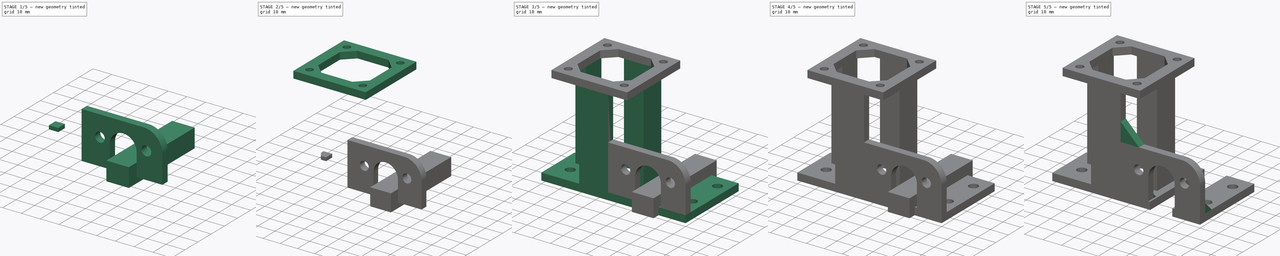
[diagram: build sequence overview — one tinted view per stage of 5, left to right]
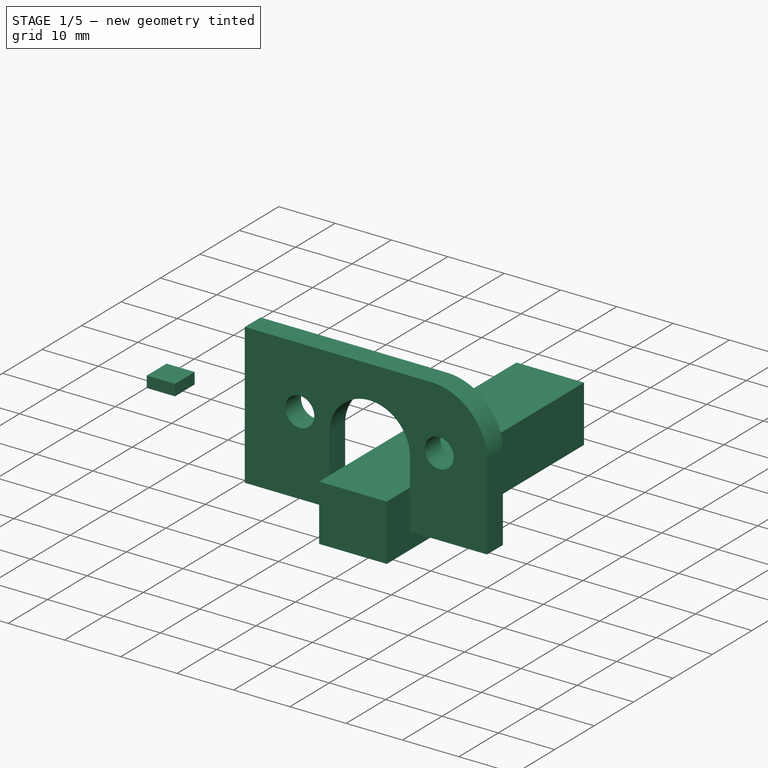
[diagram: stage 1 of 5 — iso view after this stage's code; geometry added in this stage tinted green]
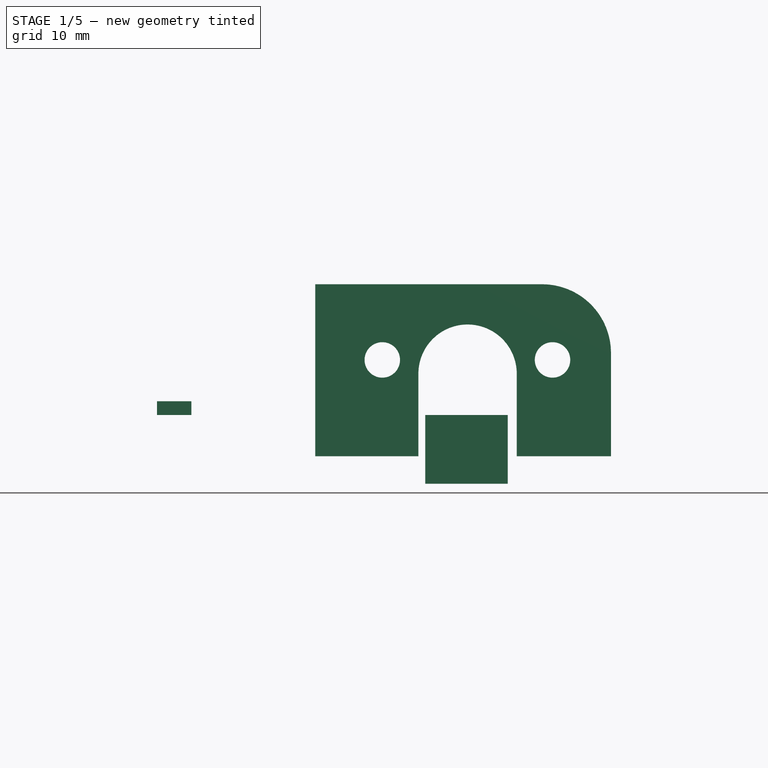
[diagram: stage 1 of 5 — front view after this stage's code; geometry added in this stage tinted green]
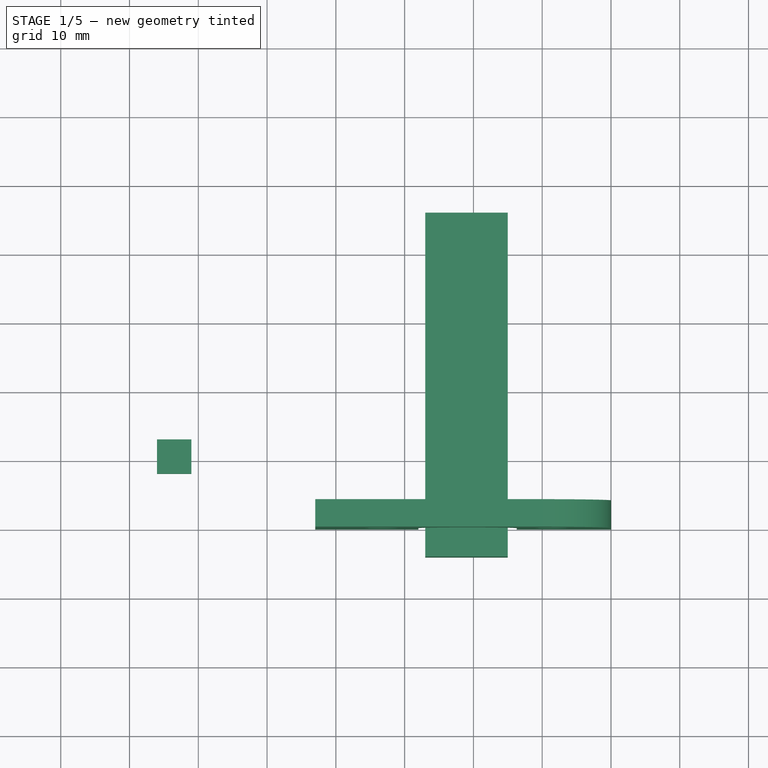
[diagram: stage 1 of 5 — top view after this stage's code; geometry added in this stage tinted green]
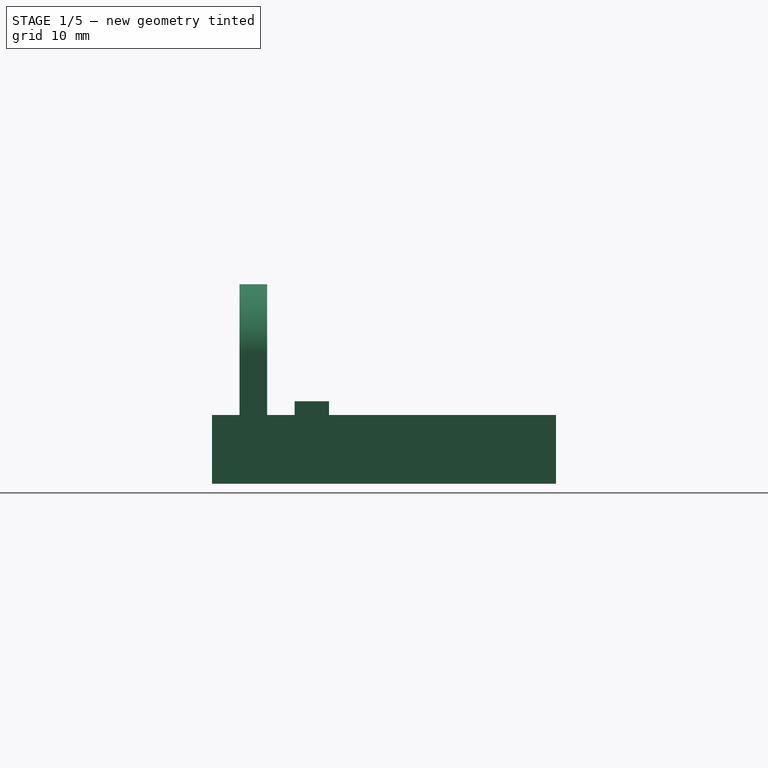
[diagram: stage 1 of 5 — right view after this stage's code; geometry added in this stage tinted green]
FCSTD DOCUMENT  (FreeCAD 0.14R3702 (Git))
Label: left_slide_rail_flange_mount
License: CC-BY 3.0
LicenseURL: http://creativecommons.org/licenses/by/3.0/
objects: Part::Box×10, Sketcher::SketchObject×7, PartDesign::Pocket×6, Part::MultiFuse×4, PartDesign::Chamfer×3, PartDesign::Pad×1, PartDesign::Fillet×1, Part::Cut×1
note: 40 computed .brp shape members not serialized (recipe doc carries the construction recipe); baked Part::Feature solids carry a one-line shape summary decoded from their .brp

FEATURE [Part::Box] Box006  label="Cube005"
  Height = 2
  Length = 5
  Placement = pos=(14,8,10) rot=(0,0,1;0rad)
  Width = 5
FEATURE [Part::Box] Box008  label="Cube007"
  Height = 25
  Length = 43
  Placement = pos=(37,0,4) rot=(0,0,1;0rad)
  Width = 4
FEATURE [Sketcher::SketchObject] Sketch006
  Placement = pos=(37,0,4) rot=(1,0,0;1.5708rad)
  Support = -> Box008 [Face3]
  sketch-geometry (6):
    g0: Circle CenterX=34.5 CenterY=14 CenterZ=0 NormalX=0 NormalY=0 NormalZ=1 Radius=2.5781
    g1: Circle CenterX=9.753 CenterY=14 CenterZ=0 NormalX=0 NormalY=0 NormalZ=1 Radius=2.5781
    g2: ArcOfCircle CenterX=22.15 CenterY=12 CenterZ=0 NormalX=0 NormalY=0 NormalZ=1 Radius=7.15 StartAngle=3.69758e-06 EndAngle=3.14159
    g3: LineSegment StartX=15 StartY=12 StartZ=0 EndX=15 EndY=0 EndZ=0
    g4: LineSegment StartX=29.3 StartY=12 StartZ=0 EndX=29.3 EndY=0 EndZ=0
    g5: LineSegment StartX=15 StartY=0 StartZ=0 EndX=29.3 EndY=0 EndZ=0
  constraints (19):
    c: Radius(g0) = 2.5781
    c: Equal(g0,g1)
    c: DistanceX(g1,g0) = 24.747
    c: DistanceY(g-1,g1) = 14
    c: DistanceY(g-1,g0) = 14
    c: DistanceX(g-1,g0) = 34.5
    c: Coincident(g3,g2)
    c: PointOnObject(g3,g-1)
    c: Vertical(g3)
    c: Coincident(g4,g2)
    c: PointOnObject(g4,g-1)
    c: Vertical(g4)
    c: Tangent(g4,g2)
    c: DistanceX(g-1,g2) = 22.15
    c: DistanceX(g-1,g2) = 15
    c: DistanceY(g-1,g2) = 12
    c: DistanceY(g-1,g2) = 12
    c: Coincident(g5,g3)
    c: Coincident(g5,g4)
FEATURE [PartDesign::Pocket] Pocket005
  Length = 5
  Placement = pos=(37,0,4) rot=(0,0,1;0rad)
  Sketch = -> Sketch006
  Type = 1
FEATURE [PartDesign::Fillet] Fillet
  Base = -> Pocket005 [Edge15]
  Placement = pos=(37,0,4) rot=(0,0,1;0rad)
  Radius = 10
FEATURE [Part::Box] Box009  label="Cube008"
  Height = 10
  Length = 12
  Placement = pos=(53,-4,0) rot=(0,0,1;0rad)
  Width = 50
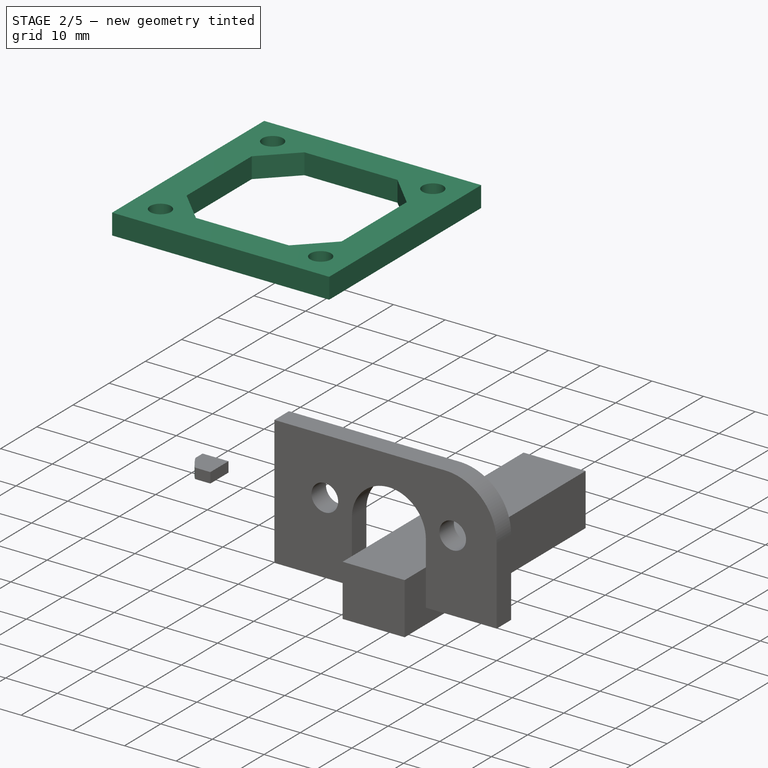
[diagram: stage 2 of 5 — iso view after this stage's code; geometry added in this stage tinted green]
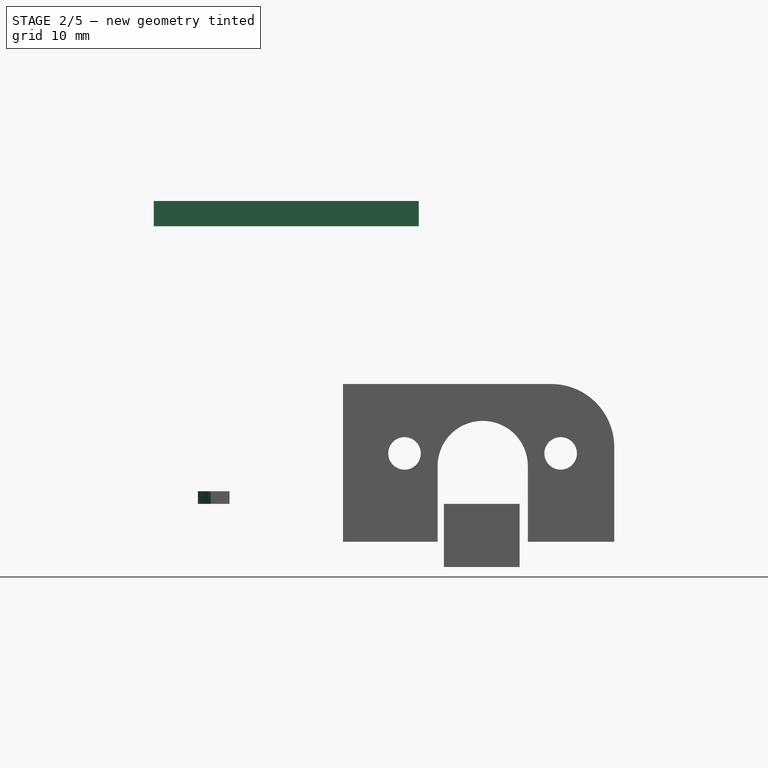
[diagram: stage 2 of 5 — front view after this stage's code; geometry added in this stage tinted green]
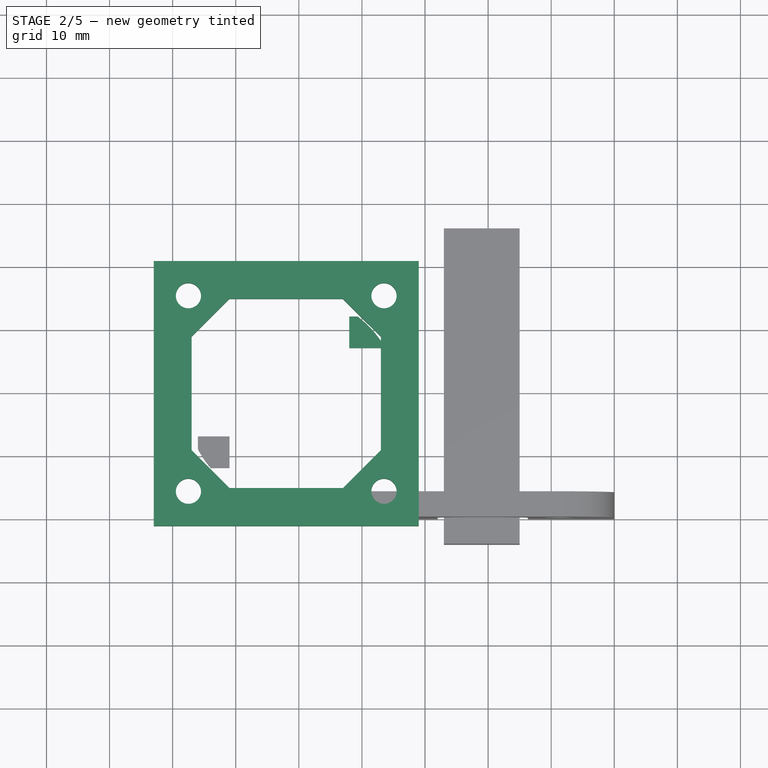
[diagram: stage 2 of 5 — top view after this stage's code; geometry added in this stage tinted green]
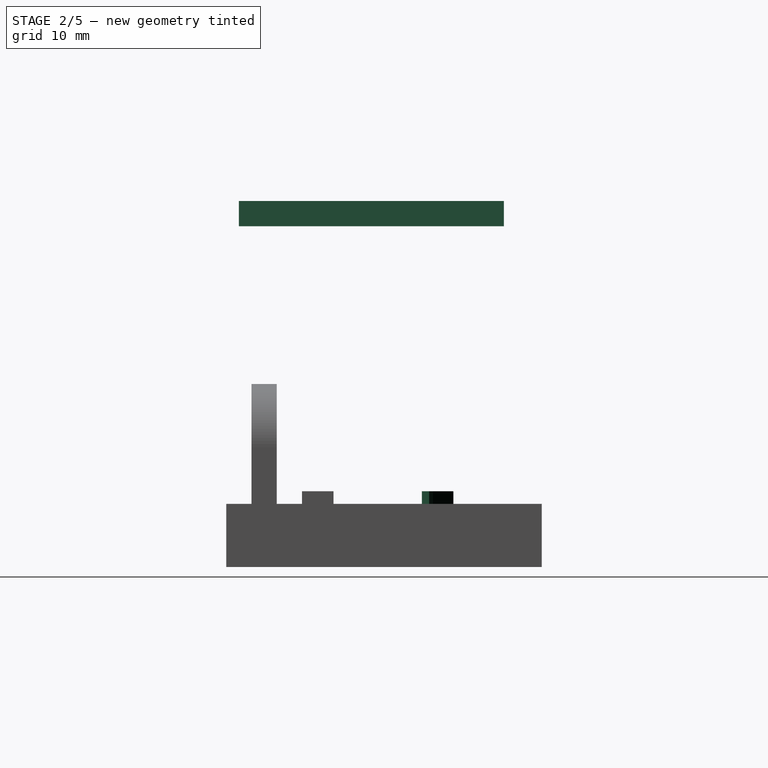
[diagram: stage 2 of 5 — right view after this stage's code; geometry added in this stage tinted green]
FEATURE [Part::Box] Box005  label="Cube004"
  Height = 4
  Length = 42
  Placement = pos=(7,-2,54) rot=(0,0,1;0rad)
  Width = 42
FEATURE [Sketcher::SketchObject] Sketch003
  Placement = pos=(7,-2,58) rot=(0,0,1;0rad)
  Support = -> Box005 [Face6]
  sketch-geometry (12):
    g0: LineSegment StartX=6 StartY=30 StartZ=0 EndX=6 EndY=12 EndZ=0
    g1: LineSegment StartX=6 StartY=12 StartZ=0 EndX=12 EndY=6 EndZ=0
    g2: LineSegment StartX=12 StartY=6 StartZ=0 EndX=30 EndY=6 EndZ=0
    g3: LineSegment StartX=30 StartY=6 StartZ=0 EndX=36 EndY=12 EndZ=0
    g4: LineSegment StartX=36 StartY=12 StartZ=0 EndX=36 EndY=30 EndZ=0
    g5: LineSegment StartX=36 StartY=30 StartZ=0 EndX=30 EndY=36 EndZ=0
    g6: LineSegment StartX=30 StartY=36 StartZ=0 EndX=12 EndY=36 EndZ=0
    g7: LineSegment StartX=12 StartY=36 StartZ=0 EndX=6 EndY=30 EndZ=0
    g8: Circle CenterX=5.5 CenterY=36.5 CenterZ=0 NormalX=0 NormalY=0 NormalZ=1 Radius=2
    g9: Circle CenterX=36.5 CenterY=36.5 CenterZ=0 NormalX=0 NormalY=0 NormalZ=1 Radius=2
    g10: Circle CenterX=5.5 CenterY=5.5 CenterZ=0 NormalX=0 NormalY=0 NormalZ=1 Radius=2
    g11: Circle CenterX=36.5 CenterY=5.5 CenterZ=0 NormalX=0 NormalY=0 NormalZ=1 Radius=2
  constraints (36):
    c: Vertical(g0)
    c: Coincident(g0,g1)
    c: Coincident(g1,g2)
    c: Horizontal(g2)
    c: Coincident(g2,g3)
    c: Coincident(g3,g4)
    c: Vertical(g4)
    c: Coincident(g4,g5)
    c: Coincident(g5,g6)
    c: Horizontal(g6)
    c: Coincident(g6,g7)
    c: Coincident(g7,g0)
    c: DistanceX(g-1,g0) = 6
    c: DistanceY(g-1,g1) = 6
    c: DistanceY(g-1,g6) = 36
    c: DistanceX(g-1,g3) = 36
    c: DistanceY(g-1,g4) = 30
    c: DistanceX(g-1,g5) = 30
    c: DistanceX(g-1,g6) = 12
    c: DistanceY(g-1,g0) = 12
    c: DistanceY(g-1,g0) = 30
    c: DistanceX(g-1,g1) = 12
    c: DistanceX(g-1,g2) = 30
    c: DistanceY(g-1,g3) = 12
    c: Radius(g8) = 2
    c: Equal(g8,g9)
    c: Equal(g9,g11)
    c: Equal(g11,g10)
    c: DistanceX(g8,g9) = 31
    c: DistanceY(g9,g11) = -31
    c: DistanceX(g10,g11) = 31
    c: DistanceY(g10,g8) = 31
    c: DistanceY(g8,g11) = -31
    c: DistanceX(g11,g8) = -31
    c: DistanceY(g-1,g10) = 5.5
    c: DistanceX(g-1,g10) = 5.5
FEATURE [PartDesign::Pocket] Pocket002
  Length = 5
  Placement = pos=(7,-2,54) rot=(0,0,1;0rad)
  Sketch = -> Sketch003
  Type = 1
FEATURE [Part::Box] Box007  label="Cube006"
  Height = 2
  Length = 5
  Placement = pos=(38,27,10) rot=(0,0,1;0rad)
  Width = 5
FEATURE [Sketcher::SketchObject] Sketch004
  Placement = pos=(38,27,12) rot=(0,0,1;0rad)
  Support = -> Box007 [Face6]
  sketch-geometry (2):
    g0: Circle CenterX=-9 CenterY=-8.5 CenterZ=0 NormalX=0 NormalY=0 NormalZ=1 Radius=17
    g1: Circle CenterX=-9 CenterY=-8.5 CenterZ=0 NormalX=0 NormalY=0 NormalZ=1 Radius=22
  constraints (5):
    c: Radius(g0) = 17
    c: DistanceY(g-1,g0) = -8.5
    c: DistanceX(g-1,g0) = -9
    c: Coincident(g1,g0)
    c: Radius(g1) = 22
FEATURE [PartDesign::Pocket] Pocket003
  Length = 4
  Placement = pos=(38,27,10) rot=(0,0,1;0rad)
  Sketch = -> Sketch004
  Type = 0
FEATURE [Sketcher::SketchObject] Sketch005
  Placement = pos=(14,8,12) rot=(0,0,1;0rad)
  Support = -> Box006 [Face6]
  sketch-geometry (2):
    g0: Circle CenterX=15 CenterY=11 CenterZ=0 NormalX=0 NormalY=0 NormalZ=1 Radius=17
    g1: Circle CenterX=15 CenterY=11 CenterZ=0 NormalX=0 NormalY=0 NormalZ=1 Radius=22
  constraints (5):
    c: Radius(g0) = 17
    c: DistanceX(g-1,g0) = 15
    c: DistanceY(g-1,g0) = 11
    c: Coincident(g1,g0)
    c: Radius(g1) = 22
FEATURE [PartDesign::Pocket] Pocket004
  Length = 4
  Placement = pos=(14,8,10) rot=(0,0,1;0rad)
  Sketch = -> Sketch005
  Type = 0
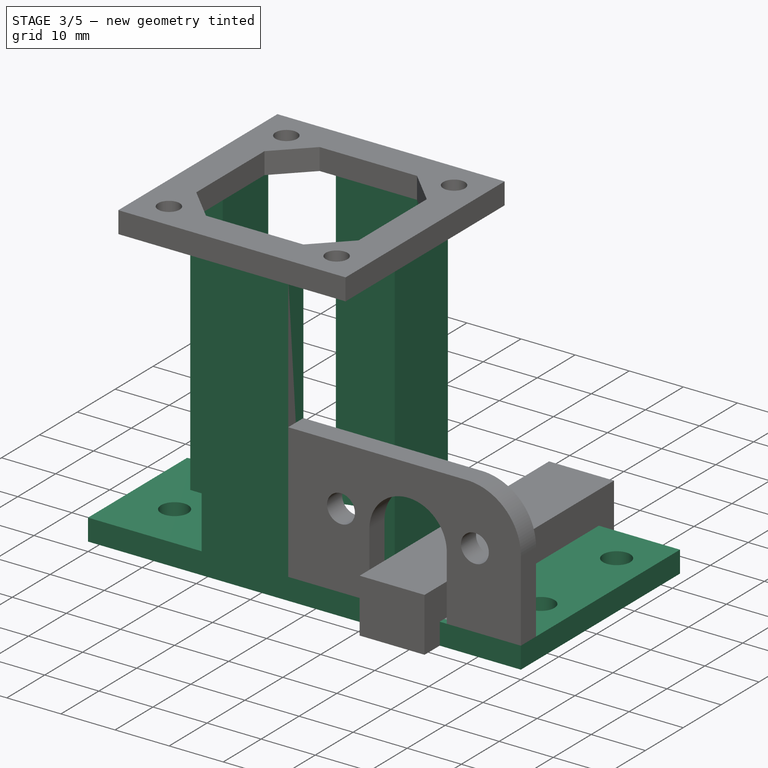
[diagram: stage 3 of 5 — iso view after this stage's code; geometry added in this stage tinted green]
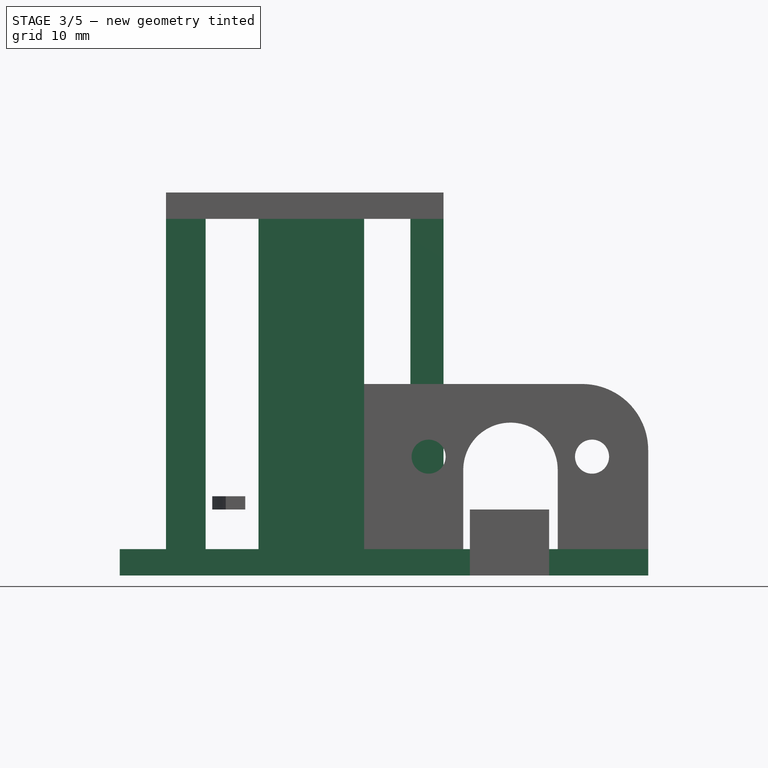
[diagram: stage 3 of 5 — front view after this stage's code; geometry added in this stage tinted green]
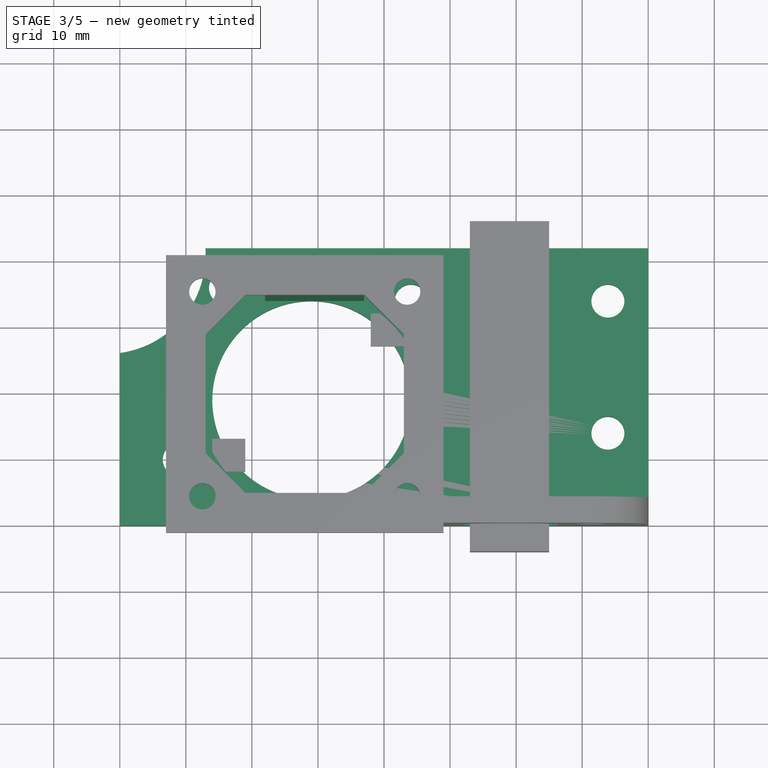
[diagram: stage 3 of 5 — top view after this stage's code; geometry added in this stage tinted green]
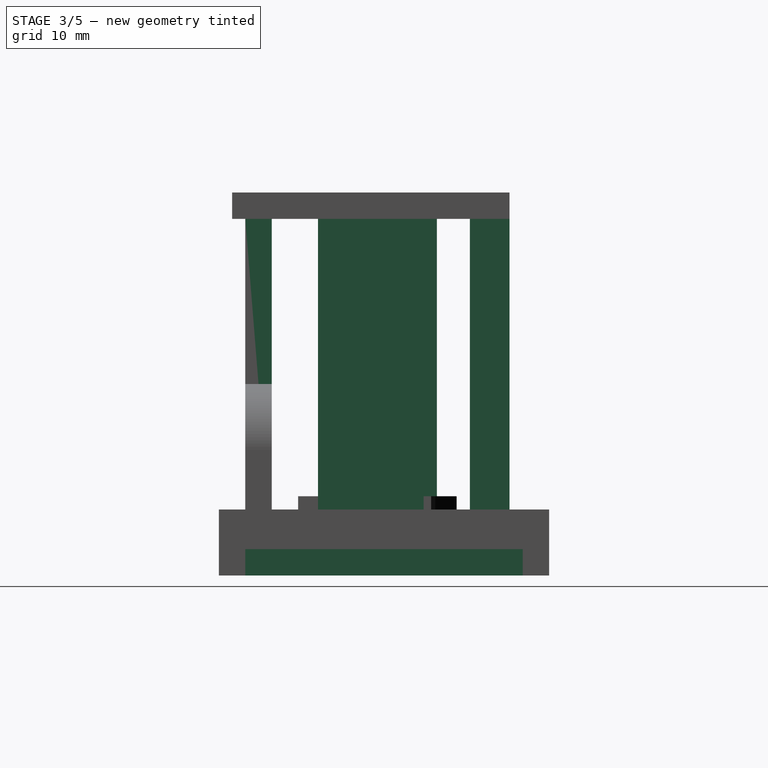
[diagram: stage 3 of 5 — right view after this stage's code; geometry added in this stage tinted green]
FEATURE [Part::Box] Box  label="base_plate"
  Height = 4
  Length = 80
  Width = 42
FEATURE [Sketcher::SketchObject] Sketch
  Placement = pos=(0,0,4) rot=(0,0,1;0rad)
  Support = -> Box [Face6]
  sketch-geometry (7):
    g0: Circle CenterX=-2 CenterY=41 CenterZ=0 NormalX=0 NormalY=0 NormalZ=1 Radius=15
    g1: Circle CenterX=29 CenterY=19 CenterZ=0 NormalX=0 NormalY=0 NormalZ=1 Radius=15
    g2: Circle CenterX=9 CenterY=10 CenterZ=0 NormalX=0 NormalY=0 NormalZ=1 Radius=2.5
    g3: Circle CenterX=16 CenterY=36 CenterZ=0 NormalX=0 NormalY=0 NormalZ=1 Radius=2.5
    g4: Circle CenterX=44.1 CenterY=34 CenterZ=0 NormalX=0 NormalY=0 NormalZ=1 Radius=2.5
    g5: Circle CenterX=73.9 CenterY=34 CenterZ=0 NormalX=0 NormalY=0 NormalZ=1 Radius=2.5
    g6: Circle CenterX=73.9 CenterY=14 CenterZ=0 NormalX=0 NormalY=0 NormalZ=1 Radius=2.5
  constraints (21):
    c: DistanceY(g-1,g0) = 41
    c: DistanceX(g-1,g0) = -2
    c: Radius(g0) = 15
    c: Radius(g1) = 15
    c: DistanceY(g-1,g1) = 19
    c: DistanceX(g-1,g1) = 29
    c: Radius(g2) = 2.5
    c: Equal(g2,g3)
    c: Equal(g3,g4)
    c: Equal(g4,g5)
    c: Equal(g5,g6)
    c: DistanceX(g-1,g2) = 9
    c: DistanceY(g-1,g2) = 10
    c: DistanceY(g-1,g6) = 14
    c: DistanceY(g5,g6) = -20
    c: DistanceX(g-1,g5) = 73.9
    c: DistanceX(g-1,g6) = 73.9
    c: DistanceX(g-1,g3) = 16
    c: DistanceY(g3,g2) = -26
    c: DistanceY(g-1,g4) = 34
    c: DistanceX(g-1,g4) = 44.1
FEATURE [PartDesign::Pocket] Pocket
  Length = 5
  Sketch = -> Sketch
  Type = 1
FEATURE [Part::Box] Box001  label="Cube"
  Height = 50
  Length = 15
  Placement = pos=(22,34,4) rot=(0,0,1;0rad)
  Width = 6
FEATURE [Part::Box] Box002  label="Cube001"
  Height = 50
  Length = 16
  Placement = pos=(21,0,4) rot=(0,0,1;0rad)
  Width = 4
FEATURE [Part::Box] Box003  label="Cube002"
  Height = 50
  Length = 5
  Placement = pos=(44,11,4) rot=(0,0,1;0rad)
  Width = 14
FEATURE [Part::Box] Box004  label="Cube003"
  Height = 50
  Length = 6
  Placement = pos=(7,17,4) rot=(0,0,1;0rad)
  Width = 12
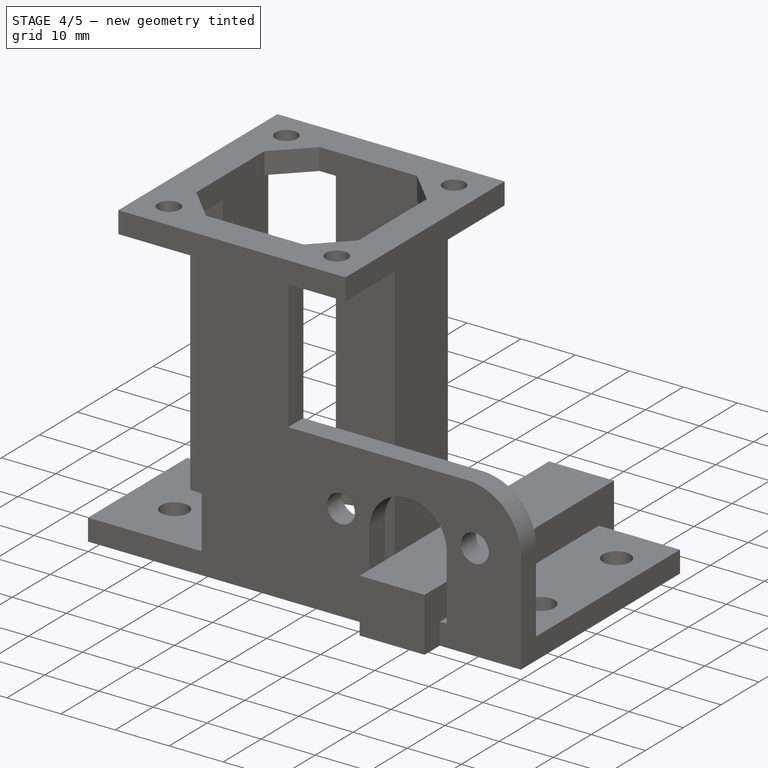
[diagram: stage 4 of 5 — iso view after this stage's code; geometry added in this stage tinted green]
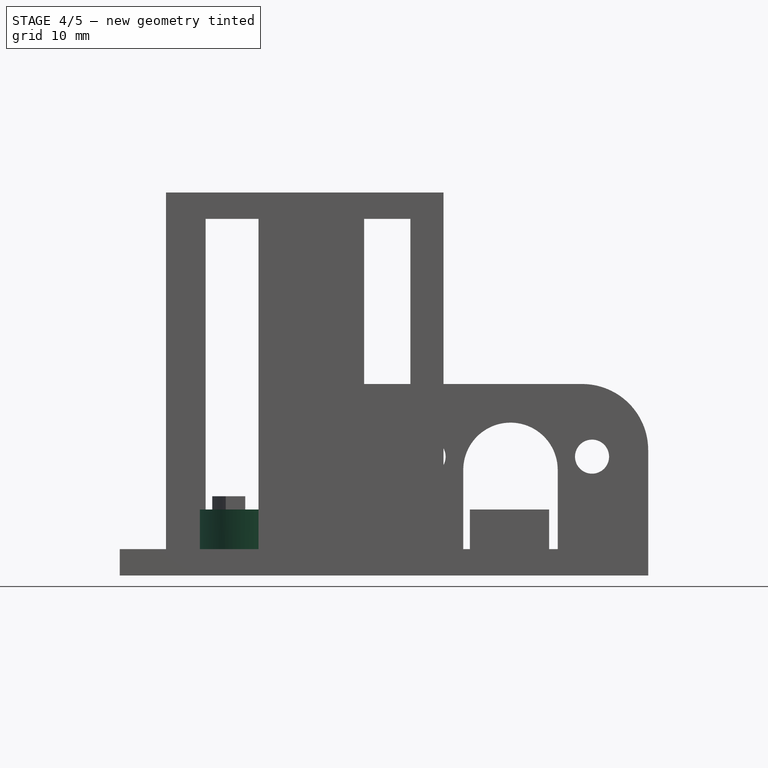
[diagram: stage 4 of 5 — front view after this stage's code; geometry added in this stage tinted green]
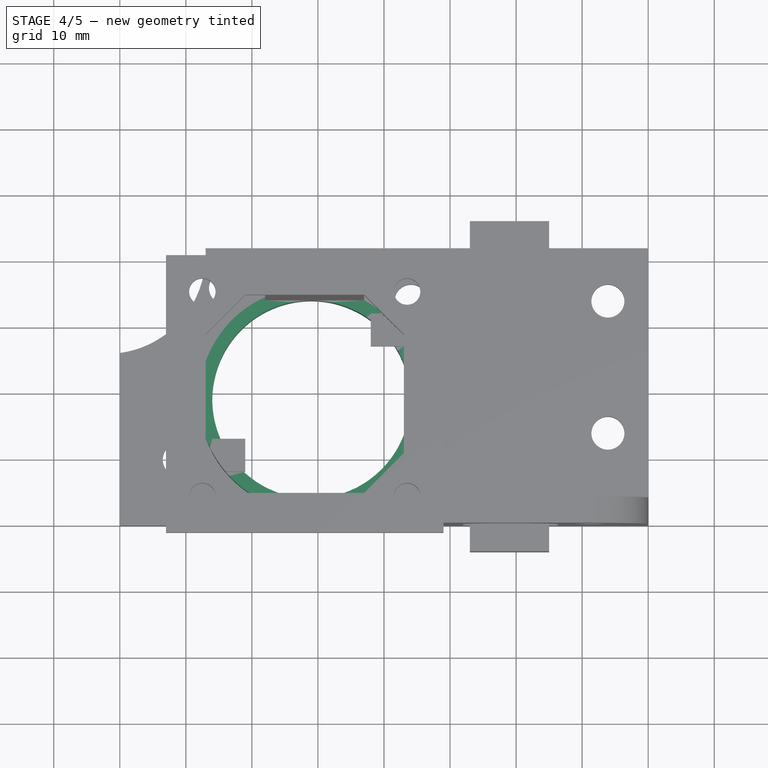
[diagram: stage 4 of 5 — top view after this stage's code; geometry added in this stage tinted green]
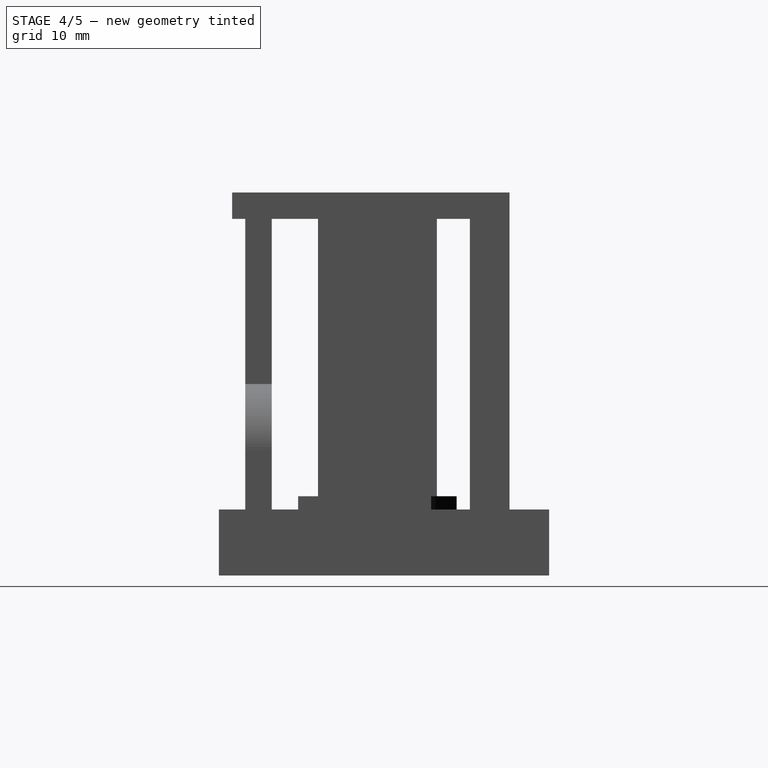
[diagram: stage 4 of 5 — right view after this stage's code; geometry added in this stage tinted green]
FEATURE [Sketcher::SketchObject] Sketch001
  Placement = pos=(0,0,4) rot=(0,0,1;0rad)
  Support = -> Pocket [Face2]
  sketch-geometry (1):
    g0: Circle CenterX=29 CenterY=19 CenterZ=0 NormalX=0 NormalY=0 NormalZ=1 Radius=17
  constraints (3):
    c: Radius(g0) = 17
    c: DistanceX(g-1,g0) = 29
    c: DistanceY(g-1,g0) = 19
FEATURE [PartDesign::Pad] Pad
  Length = 6
  Length2 = 100
  Sketch = -> Sketch001
  Type = 0
FEATURE [Sketcher::SketchObject] Sketch002
  Placement = pos=(0,0,10) rot=(0,0,1;0rad)
  Support = -> Pad [Face16]
  sketch-geometry (1):
    g0: Circle CenterX=29 CenterY=19 CenterZ=0 NormalX=0 NormalY=0 NormalZ=1 Radius=15
  constraints (3):
    c: Radius(g0) = 15
    c: DistanceX(g-1,g0) = 29
    c: DistanceY(g-1,g0) = 19
FEATURE [PartDesign::Pocket] Pocket001
  Length = 5
  Sketch = -> Sketch002
  Type = 1
FEATURE [Part::MultiFuse] Fusion
  Shapes = -> [Pocket001,Box001,Box002,Box004,Box003]
FEATURE [Part::MultiFuse] Fusion001
  Shapes = -> [Pocket002,Fusion]
FEATURE [Part::MultiFuse] Fusion002
  Shapes = -> [Pocket004,Pocket003,Fusion001]
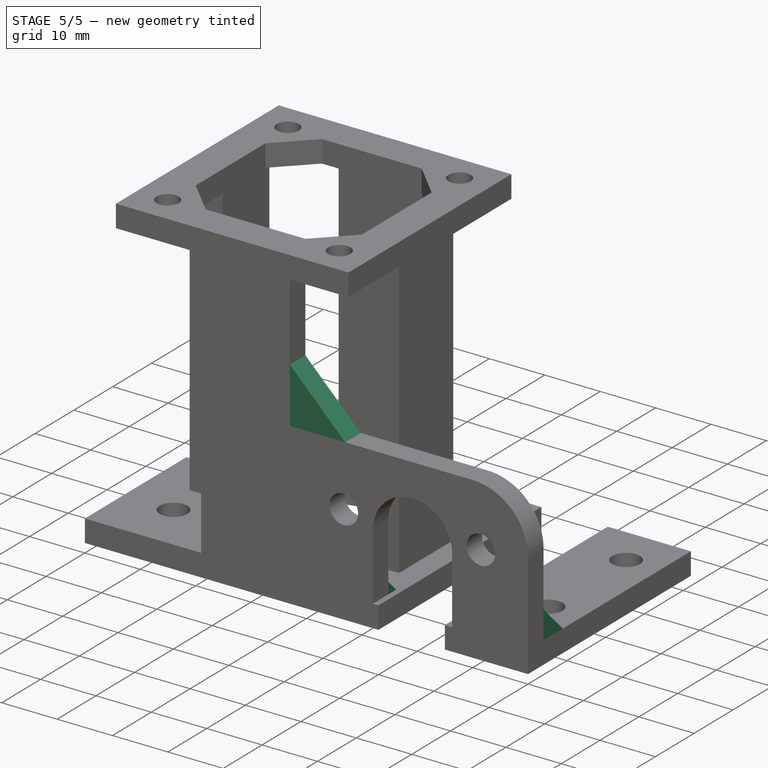
[diagram: stage 5 of 5 — iso view after this stage's code; geometry added in this stage tinted green]
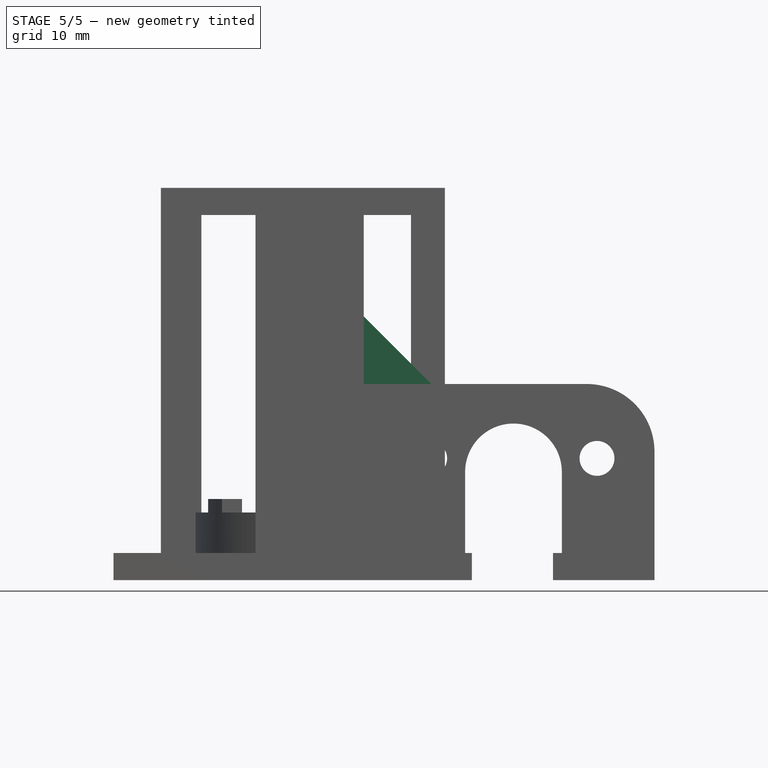
[diagram: stage 5 of 5 — front view after this stage's code; geometry added in this stage tinted green]
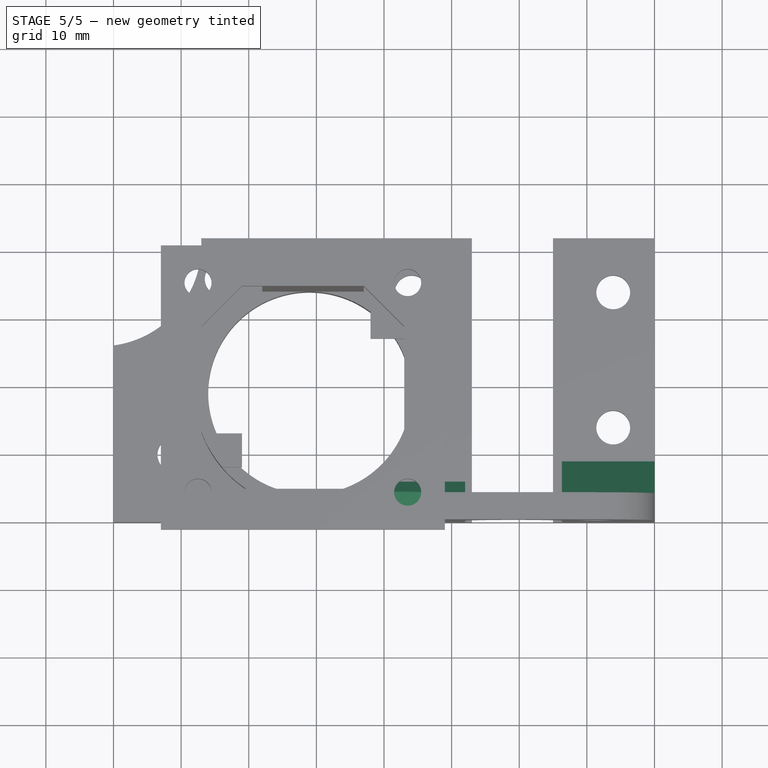
[diagram: stage 5 of 5 — top view after this stage's code; geometry added in this stage tinted green]
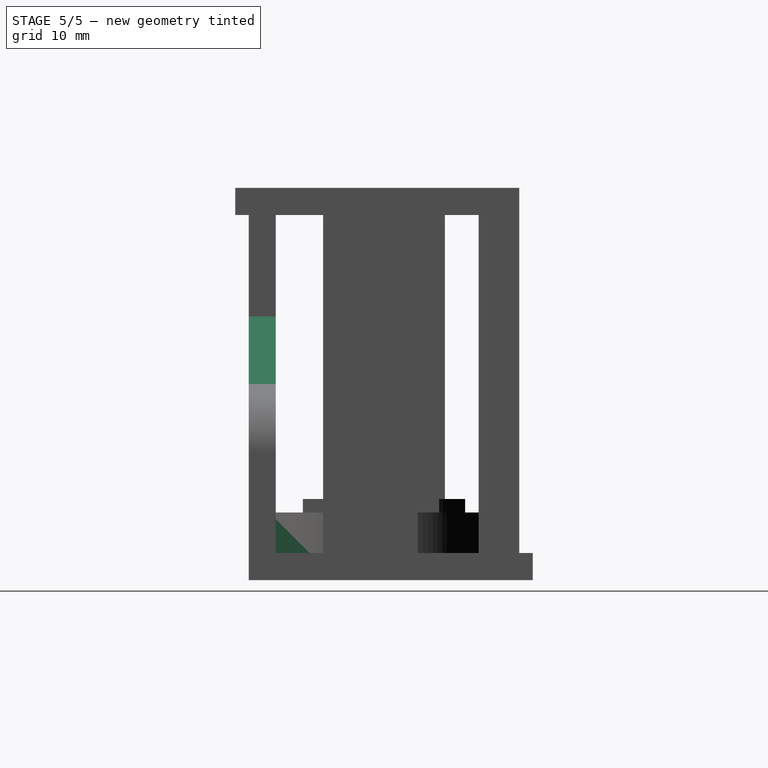
[diagram: stage 5 of 5 — right view after this stage's code; geometry added in this stage tinted green]
FEATURE [Part::MultiFuse] Fusion003
  Shapes = -> [Fusion002,Fillet]
FEATURE [PartDesign::Chamfer] Chamfer
  Base = -> Fusion003 [Edge70]
  Size = 5
FEATURE [PartDesign::Chamfer] Chamfer001
  Base = -> Chamfer [Edge12]
  Size = 2
FEATURE [Part::Cut] Cut
  Base = -> Chamfer001
  Tool = -> Box009
FEATURE [PartDesign::Chamfer] Chamfer002
  Base = -> Cut [Edge173]
  Size = 10
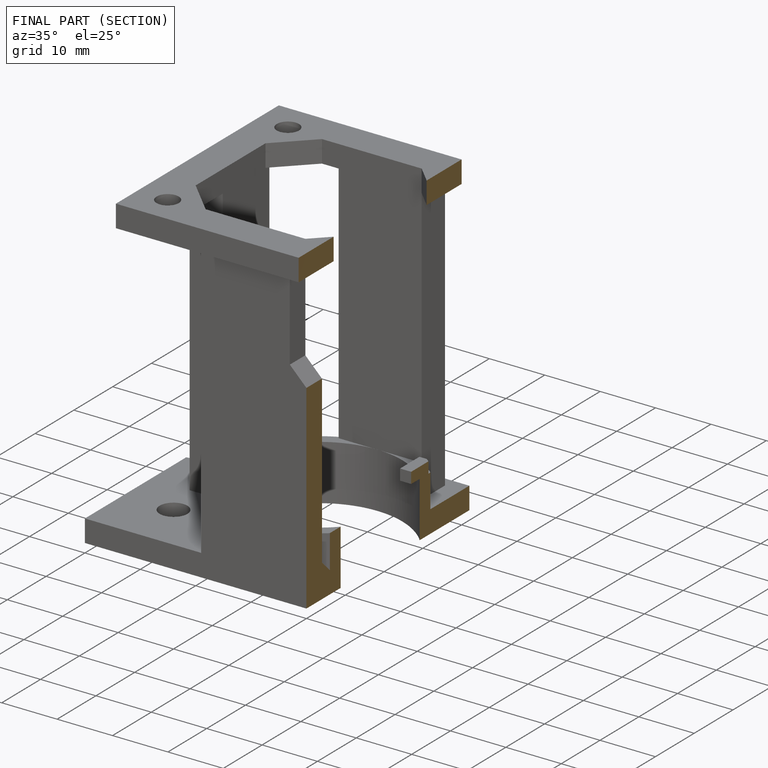
[diagram: finished part — half-section view (interior)]
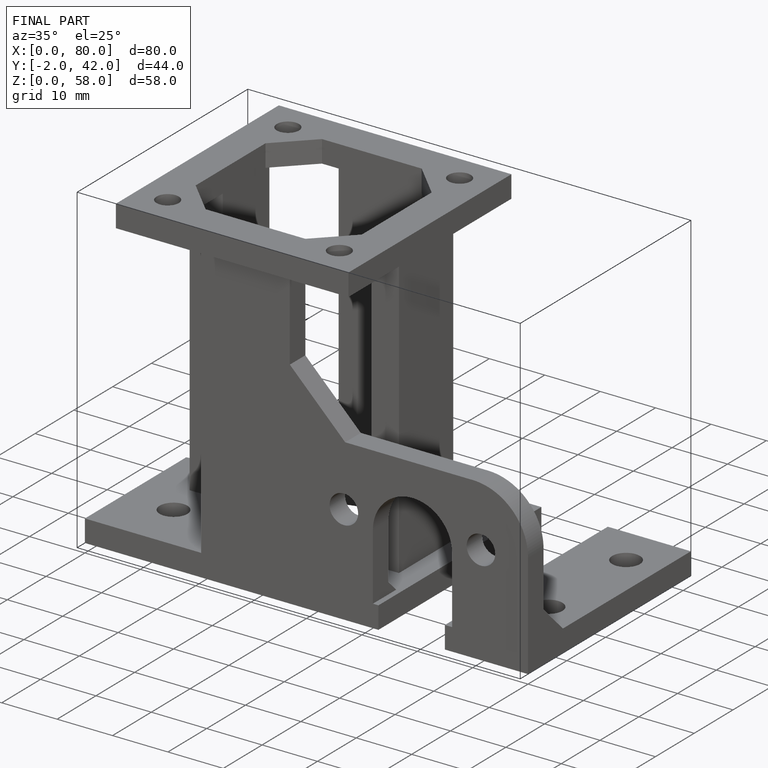
[diagram: finished part — iso view with bounding-box wireframe]
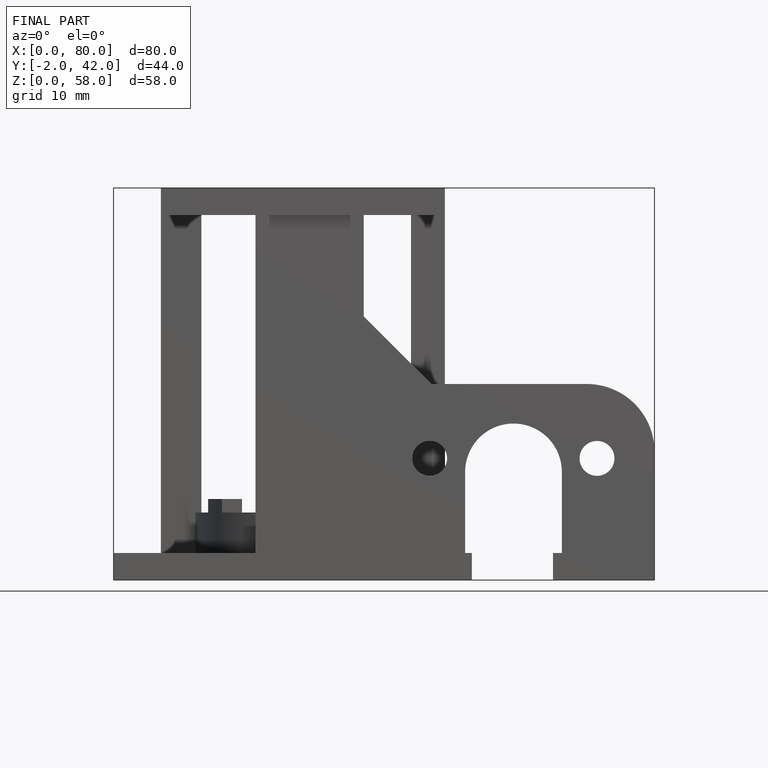
[diagram: finished part — front view with bounding-box wireframe]
